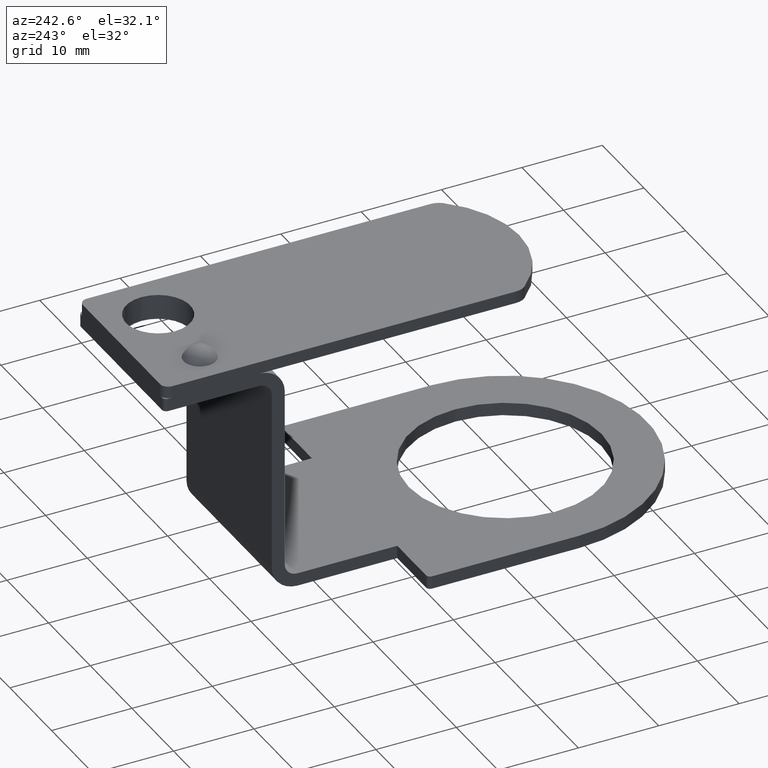
[diagram: clean part render]
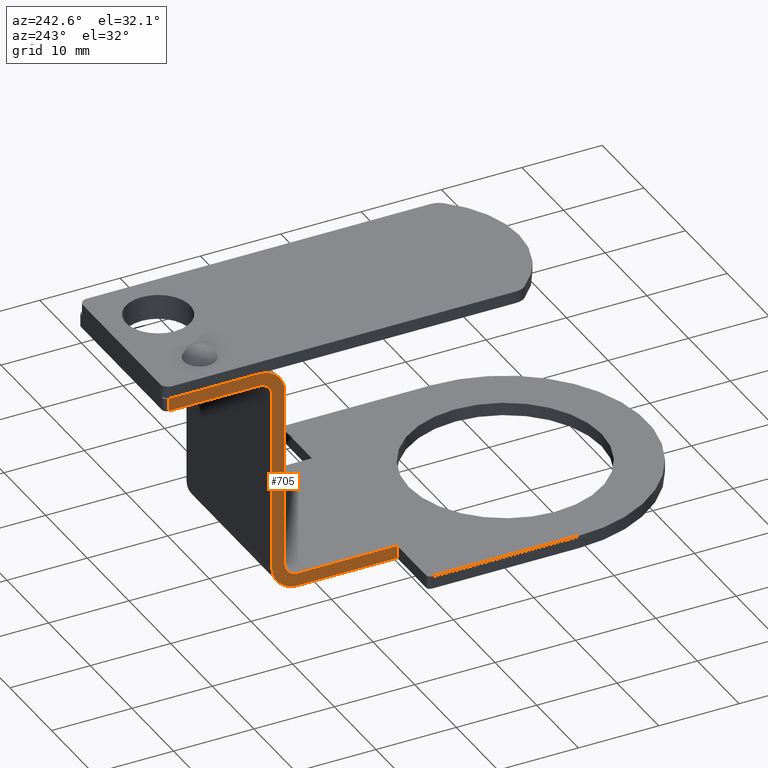
[diagram: same view with one face highlighted and labeled with its STEP entity id]
A machine part, auxiliary view. The second image highlights one B-rep face of the part: STEP entity #705.
In plain terms, the highlighted planar face has unit normal (1, 0, 0).
Its self-contained STEP definition (entity closure, byte-faithful):
#258=CARTESIAN_POINT('',(-7.473034844879956,12.891234150719997,1.600000000000000));
#259=VERTEX_POINT('',#258);
#266=CARTESIAN_POINT('',(-7.473034844879951,0.491234150719997,1.600000000000000));
#267=VERTEX_POINT('',#266);
#268=CARTESIAN_POINT('',(-7.473034844879951,0.491234150719997,1.600000000000000));
#269=DIRECTION('',(0.0,1.0,0.0));
#270=VECTOR('',#269,12.400000000000000);
#271=LINE('',#268,#270);
#272=EDGE_CURVE('',#267,#259,#271,.T.);
#326=CARTESIAN_POINT('',(-7.473034844879960,28.991234150720004,29.000000000000004));
#327=VERTEX_POINT('',#326);
#345=CARTESIAN_POINT('',(-7.473034844879960,28.991234150720004,27.400000000000002));
#346=VERTEX_POINT('',#345);
#354=CARTESIAN_POINT('',(-7.473034844879960,28.991234150720004,27.400000000000002));
#355=DIRECTION('',(0.0,0.0,1.0));
#356=VECTOR('',#355,1.600000000000001);
#357=LINE('',#354,#356);
#358=EDGE_CURVE('',#346,#327,#357,.T.);
#400=CARTESIAN_POINT('',(-7.473034844879960,17.691234150719989,29.000000000000004));
#401=VERTEX_POINT('',#400);
#402=CARTESIAN_POINT('',(-7.473034844879960,28.991234150720004,29.000000000000004));
#403=DIRECTION('',(0.0,-1.0,0.0));
#404=VECTOR('',#403,11.300000000000015);
#405=LINE('',#402,#404);
#406=EDGE_CURVE('',#327,#401,#405,.T.);
#588=CARTESIAN_POINT('',(-7.473034844879951,0.491234150719997,0.0));
#589=VERTEX_POINT('',#588);
#590=CARTESIAN_POINT('',(-7.473034844879951,0.491234150719997,0.0));
#591=DIRECTION('',(0.0,0.0,1.0));
#592=VECTOR('',#591,1.600000000000000);
#593=LINE('',#590,#592);
#594=EDGE_CURVE('',#589,#267,#593,.T.);
#614=CARTESIAN_POINT('',(-7.473034844879960,17.691234150719989,27.400000000000002));
#615=VERTEX_POINT('',#614);
#622=CARTESIAN_POINT('',(-7.473034844879960,17.691234150719989,27.400000000000002));
#623=DIRECTION('',(0.0,1.0,0.0));
#624=VECTOR('',#623,11.300000000000015);
#625=LINE('',#622,#624);
#626=EDGE_CURVE('',#615,#346,#625,.T.);
#637=CARTESIAN_POINT('',(-7.473034844879960,21.991234150720000,28.200000000000003));
#638=DIRECTION('',(1.0,0.0,0.0));
#639=DIRECTION('',(0.0,0.0,-1.0));
#640=AXIS2_PLACEMENT_3D('',#637,#638,#639);
#641=PLANE('',#640);
#642=ORIENTED_EDGE('',*,*,#358,.F.);
#643=ORIENTED_EDGE('',*,*,#626,.F.);
#644=CARTESIAN_POINT('',(-7.473034844879960,16.091234150719998,25.800000000000001));
#645=VERTEX_POINT('',#644);
#646=CARTESIAN_POINT('',(-7.473034844879960,17.691234150720000,25.800000000000001));
#647=DIRECTION('',(-1.0,0.0,0.0));
#648=DIRECTION('',(0.0,-1.0,0.0));
#649=AXIS2_PLACEMENT_3D('',#646,#647,#648);
#650=CIRCLE('',#649,1.600000000000001);
#651=EDGE_CURVE('',#645,#615,#650,.T.);
#652=ORIENTED_EDGE('',*,*,#651,.F.);
#653=CARTESIAN_POINT('',(-7.473034844879956,16.091234150719998,3.200000000000012));
#654=VERTEX_POINT('',#653);
#655=CARTESIAN_POINT('',(-7.473034844879956,16.091234150719998,3.200000000000012));
#656=DIRECTION('',(0.0,0.0,1.0));
#657=VECTOR('',#656,22.599999999999987);
#658=LINE('',#655,#657);
#659=EDGE_CURVE('',#654,#645,#658,.T.);
#660=ORIENTED_EDGE('',*,*,#659,.F.);
#661=CARTESIAN_POINT('',(-7.473034844879956,12.891234150719997,5.551115E-016));
#662=VERTEX_POINT('',#661);
#663=CARTESIAN_POINT('',(-7.473034844879956,12.891234150719997,3.200000000000001));
#664=DIRECTION('',(1.0,0.0,0.0));
#665=DIRECTION('',(0.0,0.0,-1.0));
#666=AXIS2_PLACEMENT_3D('',#663,#664,#665);
#667=CIRCLE('',#666,3.200000000000000);
#668=EDGE_CURVE('',#662,#654,#667,.T.);
#669=ORIENTED_EDGE('',*,*,#668,.F.);
#670=CARTESIAN_POINT('',(-7.473034844879956,12.891234150719997,5.551115E-016));
#671=DIRECTION('',(0.0,-1.0,0.0));
#672=VECTOR('',#671,12.400000000000000);
#673=LINE('',#670,#672);
#674=EDGE_CURVE('',#662,#589,#673,.T.);
#675=ORIENTED_EDGE('',*,*,#674,.T.);
#676=ORIENTED_EDGE('',*,*,#594,.T.);
#677=ORIENTED_EDGE('',*,*,#272,.T.);
#678=CARTESIAN_POINT('',(-7.473034844879956,14.491234150719997,3.200000000000012));
#679=VERTEX_POINT('',#678);
#680=CARTESIAN_POINT('',(-7.473034844879956,12.891234150719997,3.200000000000001));
#681=DIRECTION('',(1.0,0.0,0.0));
#682=DIRECTION('',(0.0,0.0,-1.0));
#683=AXIS2_PLACEMENT_3D('',#680,#681,#682);
#684=CIRCLE('',#683,1.600000000000000);
#685=EDGE_CURVE('',#259,#679,#684,.T.);
#686=ORIENTED_EDGE('',*,*,#685,.T.);
#687=CARTESIAN_POINT('',(-7.473034844879960,14.491234150719999,25.800000000000001));
#688=VERTEX_POINT('',#687);
#689=CARTESIAN_POINT('',(-7.473034844879960,14.491234150719999,25.800000000000001));
#690=DIRECTION('',(0.0,0.0,-1.0));
#691=VECTOR('',#690,22.599999999999987);
#692=LINE('',#689,#691);
#693=EDGE_CURVE('',#688,#679,#692,.T.);
#694=ORIENTED_EDGE('',*,*,#693,.F.);
#695=CARTESIAN_POINT('',(-7.473034844879960,17.691234150720000,25.800000000000001));
#696=DIRECTION('',(-1.0,0.0,0.0));
#697=DIRECTION('',(0.0,-1.0,0.0));
#698=AXIS2_PLACEMENT_3D('',#695,#696,#697);
#699=CIRCLE('',#698,3.200000000000001);
#700=EDGE_CURVE('',#688,#401,#699,.T.);
#701=ORIENTED_EDGE('',*,*,#700,.T.);
#702=ORIENTED_EDGE('',*,*,#406,.F.);
#703=EDGE_LOOP('',(#642,#643,#652,#660,#669,#675,#676,#677,#686,#694,#701,#702));
#704=FACE_OUTER_BOUND('',#703,.T.);
#705=ADVANCED_FACE('',(#704),#641,.F.);